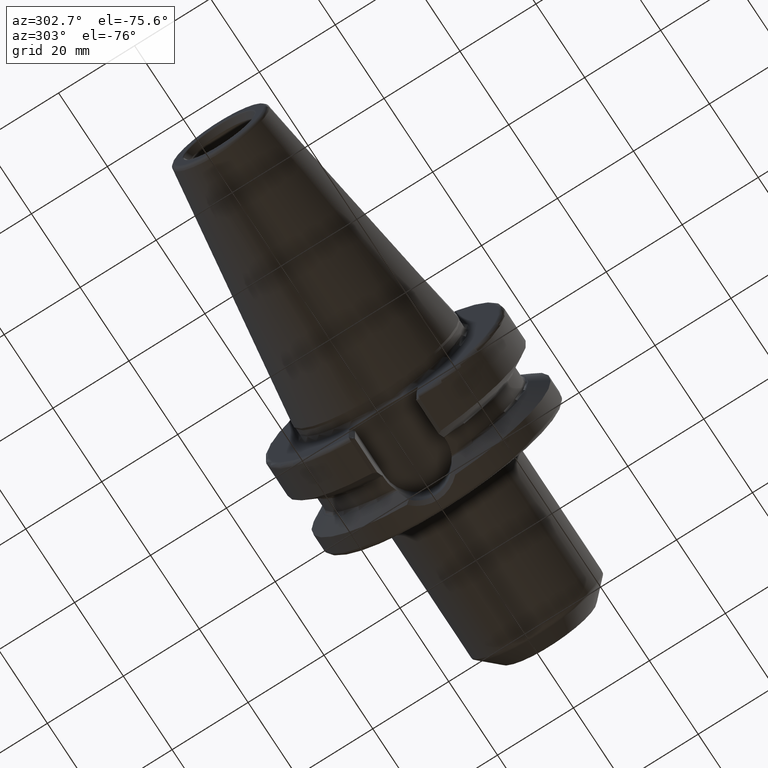
[diagram: clean part render]
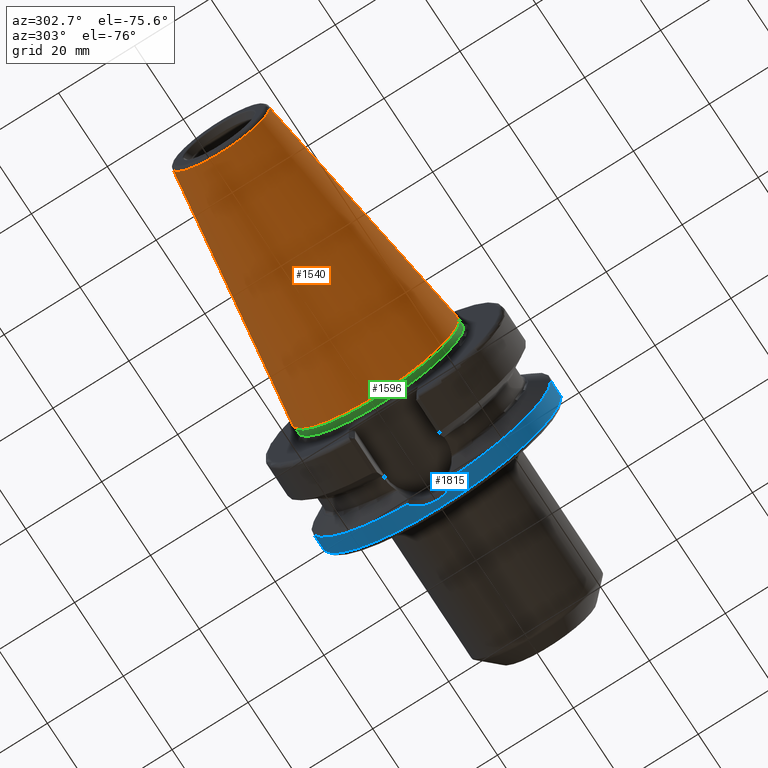
[diagram: same view with three faces highlighted in distinct colors, each labeled with its STEP entity id]
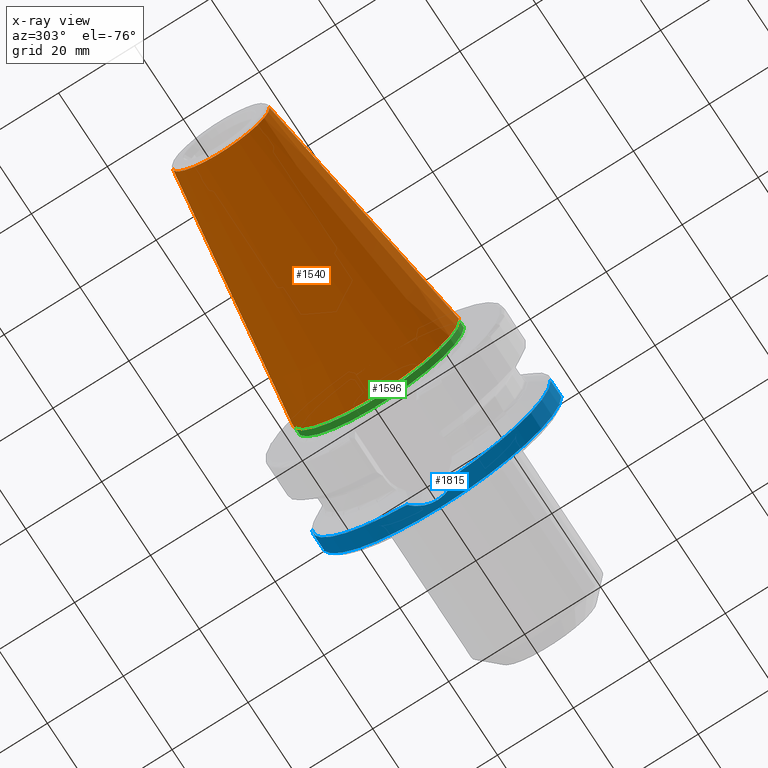
[diagram: x-ray of the same camera — body ghosted, the three highlighted faces saturated]
A machine part, auxiliary view with three faces highlighted in distinct colors.
The next image is the same camera in x-ray (body ghosted, the three faces saturated) — at least one of them is partly hidden behind the body in this view.
Their STEP definitions:

[orange] entity #1540 — the highlighted conical surface has half-angle 8.298 deg.
#32=CARTESIAN_POINT('',(-6.454431866917E1,0.E0,0.E0));
#33=DIRECTION('',(-1.E0,0.E0,0.E0));
#34=DIRECTION('',(0.E0,1.E0,0.E0));
#35=AXIS2_PLACEMENT_3D('',#32,#33,#34);
#47=DIRECTION('',(-9.895312636440E-1,-1.443186691705E-1,0.E0));
#48=VECTOR('',#47,6.394703124850E1);
#49=CARTESIAN_POINT('',(-1.266732031557E0,2.204025284980E1,0.E0));
#50=LINE('',#49,#48);
#51=DIRECTION('',(-9.895312636440E-1,1.443186691705E-1,0.E0));
#52=VECTOR('',#51,6.394703124850E1);
#53=CARTESIAN_POINT('',(-1.266732031557E0,-2.204025284980E1,0.E0));
#54=LINE('',#53,#52);
#55=CARTESIAN_POINT('',(-1.266732031557E0,0.E0,0.E0));
#56=DIRECTION('',(-1.E0,0.E0,0.E0));
#57=DIRECTION('',(0.E0,1.E0,0.E0));
#58=AXIS2_PLACEMENT_3D('',#55,#56,#57);
#1208=CARTESIAN_POINT('',(-6.454431866917E1,1.281150240261E1,0.E0));
#1210=VERTEX_POINT('',#1208);
#1212=CARTESIAN_POINT('',(-6.454431866917E1,-1.281150240261E1,0.E0));
#1214=VERTEX_POINT('',#1212);
#1427=CARTESIAN_POINT('',(-1.266732031557E0,2.204025284980E1,0.E0));
#1428=VERTEX_POINT('',#1427);
#1429=CARTESIAN_POINT('',(-1.266732031557E0,-2.204025284980E1,0.E0));
#1430=VERTEX_POINT('',#1429);
#1528=CARTESIAN_POINT('',(-3.290552535036E1,0.E0,0.E0));
#1529=DIRECTION('',(1.E0,0.E0,0.E0));
#1530=DIRECTION('',(0.E0,-1.E0,0.E0));
#1531=AXIS2_PLACEMENT_3D('',#1528,#1529,#1530);
#1532=CONICAL_SURFACE('',#1531,1.742587762621E1,8.297826828206E0);
#1533=ORIENTED_EDGE('',*,*,#1518,.T.);
#1534=ORIENTED_EDGE('',*,*,#1495,.T.);
#1535=ORIENTED_EDGE('',*,*,#1522,.F.);
#1537=ORIENTED_EDGE('',*,*,#1536,.F.);
#1538=EDGE_LOOP('',(#1533,#1534,#1535,#1537));
#1539=FACE_OUTER_BOUND('',#1538,.F.);
#1540=ADVANCED_FACE('',(#1539),#1532,.T.);
#36=CIRCLE('',#35,1.281150240261E1);
#59=CIRCLE('',#58,2.204025284980E1);
#1495=EDGE_CURVE('',#1210,#1214,#36,.T.);
#1518=EDGE_CURVE('',#1428,#1210,#50,.T.);
#1522=EDGE_CURVE('',#1430,#1214,#54,.T.);
#1536=EDGE_CURVE('',#1428,#1430,#59,.T.);

[blue] entity #1815 — the highlighted cylindrical surface (partial cylindrical patch) has radius 31.4875 mm, axis along (1, 0, 0).
#246=CARTESIAN_POINT('',(2.162727746897E1,0.E0,0.E0));
#247=DIRECTION('',(1.E0,0.E0,0.E0));
#248=DIRECTION('',(0.E0,-1.E0,0.E0));
#249=AXIS2_PLACEMENT_3D('',#246,#247,#248);
#251=DIRECTION('',(-1.E0,0.E0,0.E0));
#252=VECTOR('',#251,4.372722531031E0);
#253=CARTESIAN_POINT('',(2.6E1,-3.14875E1,0.E0));
#254=LINE('',#253,#252);
#255=CARTESIAN_POINT('',(2.6E1,0.E0,0.E0));
#256=DIRECTION('',(-1.E0,0.E0,0.E0));
#257=DIRECTION('',(0.E0,1.E0,0.E0));
#258=AXIS2_PLACEMENT_3D('',#255,#256,#257);
#260=DIRECTION('',(-1.E0,0.E0,0.E0));
#261=VECTOR('',#260,4.372722531031E0);
#262=CARTESIAN_POINT('',(2.6E1,3.14875E1,0.E0));
#263=LINE('',#262,#261);
#264=CARTESIAN_POINT('',(2.162727746897E1,0.E0,0.E0));
#265=DIRECTION('',(1.E0,0.E0,0.E0));
#266=DIRECTION('',(0.E0,2.025221356988E-1,-9.792776851088E-1));
#267=AXIS2_PLACEMENT_3D('',#264,#265,#266);
#269=CARTESIAN_POINT('',(2.162727746897E1,-6.376922817779E0,-3.083500464774E1));
#270=CARTESIAN_POINT('',(2.179639421098E1,-6.206831610819E0,-3.087018371088E1));
#271=CARTESIAN_POINT('',(2.232364867117E1,-5.632321227298E0,-3.098422972396E1));
#272=CARTESIAN_POINT('',(2.308132499159E1,-4.553413356838E0,-3.116719517710E1));
#273=CARTESIAN_POINT('',(2.375642364916E1,-3.096696697708E0,-3.134706212903E1));
#274=CARTESIAN_POINT('',(2.416388565718E1,-1.551520318298E0,-3.146240625515E1));
#275=CARTESIAN_POINT('',(2.429615986887E1,3.673173569156E-2,-3.150094402831E1));
#276=CARTESIAN_POINT('',(2.415103100304E1,1.624802494737E0,-3.145868929477E1));
#277=CARTESIAN_POINT('',(2.373074835246E1,3.167093598881E0,-3.133996423654E1));
#278=CARTESIAN_POINT('',(2.304347310477E1,4.618481554386E0,-3.115752883213E1));
#279=CARTESIAN_POINT('',(2.229119413287E1,5.670903386055E0,-3.097688944820E1));
#280=CARTESIAN_POINT('',(2.177863162319E1,6.224695230405E0,-3.086648974378E1));
#281=CARTESIAN_POINT('',(2.162727746897E1,6.376915747817E0,-3.083500610986E1));
#1264=CARTESIAN_POINT('',(2.162727746897E1,3.14875E1,0.E0));
#1266=VERTEX_POINT('',#1264);
#1268=CARTESIAN_POINT('',(2.162727746897E1,-3.14875E1,0.E0));
#1269=CARTESIAN_POINT('',(2.162727746897E1,-6.376922817779E0,
-3.083500464774E1));
#1270=VERTEX_POINT('',#1268);
#1271=VERTEX_POINT('',#1269);
#1272=CARTESIAN_POINT('',(2.6E1,3.14875E1,0.E0));
#1273=VERTEX_POINT('',#1272);
#1274=CARTESIAN_POINT('',(2.6E1,-3.14875E1,0.E0));
#1275=VERTEX_POINT('',#1274);
#1278=CARTESIAN_POINT('',(2.162727746897E1,6.376915747817E0,-3.083500610986E1));
#1279=VERTEX_POINT('',#1278);
#1796=CARTESIAN_POINT('',(-7.002E1,0.E0,0.E0));
#1797=DIRECTION('',(1.E0,0.E0,0.E0));
#1798=DIRECTION('',(0.E0,-1.E0,0.E0));
#1799=AXIS2_PLACEMENT_3D('',#1796,#1797,#1798);
#1800=CYLINDRICAL_SURFACE('',#1799,3.14875E1);
#1802=ORIENTED_EDGE('',*,*,#1801,.F.);
#1804=ORIENTED_EDGE('',*,*,#1803,.F.);
#1806=ORIENTED_EDGE('',*,*,#1805,.F.);
#1808=ORIENTED_EDGE('',*,*,#1807,.T.);
#1810=ORIENTED_EDGE('',*,*,#1809,.F.);
#1812=ORIENTED_EDGE('',*,*,#1811,.F.);
#1813=EDGE_LOOP('',(#1802,#1804,#1806,#1808,#1810,#1812));
#1814=FACE_OUTER_BOUND('',#1813,.F.);
#1815=ADVANCED_FACE('',(#1814),#1800,.T.);
#250=CIRCLE('',#249,3.14875E1);
#259=CIRCLE('',#258,3.14875E1);
#268=CIRCLE('',#267,3.14875E1);
#282=B_SPLINE_CURVE_WITH_KNOTS('',3,(#269,#270,#271,#272,#273,#274,#275,#276,
#277,#278,#279,#280,#281),.UNSPECIFIED.,.F.,.F.,(4,1,1,1,1,1,1,1,1,1,4),(0.E0,
5.022508536415E-2,1.633285299657E-1,2.764319745673E-1,3.895354191688E-1,
5.026388637704E-1,6.157423083720E-1,7.288457529735E-1,8.419491975751E-1,
9.550526421767E-1,1.E0),.UNSPECIFIED.);
#1801=EDGE_CURVE('',#1270,#1271,#250,.T.);
#1803=EDGE_CURVE('',#1275,#1270,#254,.T.);
#1805=EDGE_CURVE('',#1273,#1275,#259,.T.);
#1807=EDGE_CURVE('',#1273,#1266,#263,.T.);
#1809=EDGE_CURVE('',#1279,#1266,#268,.T.);
#1811=EDGE_CURVE('',#1271,#1279,#282,.T.);

[green] entity #1596 — the highlighted cylindrical surface (partial cylindrical patch) has radius 21.875 mm, axis along (1, 0, 0).
#68=CARTESIAN_POINT('',(-6.5E-1,0.E0,0.E0));
#69=DIRECTION('',(-1.E0,0.E0,0.E0));
#70=DIRECTION('',(0.E0,1.E0,0.E0));
#71=AXIS2_PLACEMENT_3D('',#68,#69,#70);
#83=DIRECTION('',(-1.E0,0.E0,0.E0));
#84=VECTOR('',#83,1.65E0);
#85=CARTESIAN_POINT('',(1.E0,2.1875E1,0.E0));
#86=LINE('',#85,#84);
#87=DIRECTION('',(-1.E0,0.E0,0.E0));
#88=VECTOR('',#87,1.65E0);
#89=CARTESIAN_POINT('',(1.E0,-2.1875E1,0.E0));
#90=LINE('',#89,#88);
#91=CARTESIAN_POINT('',(1.E0,0.E0,0.E0));
#92=DIRECTION('',(-1.E0,0.E0,0.E0));
#93=DIRECTION('',(0.E0,1.E0,0.E0));
#94=AXIS2_PLACEMENT_3D('',#91,#92,#93);
#1281=CARTESIAN_POINT('',(1.E0,2.1875E1,0.E0));
#1283=VERTEX_POINT('',#1281);
#1284=CARTESIAN_POINT('',(-6.5E-1,2.1875E1,0.E0));
#1285=VERTEX_POINT('',#1284);
#1287=CARTESIAN_POINT('',(1.E0,-2.1875E1,0.E0));
#1289=VERTEX_POINT('',#1287);
#1290=CARTESIAN_POINT('',(-6.5E-1,-2.1875E1,0.E0));
#1291=VERTEX_POINT('',#1290);
#1584=CARTESIAN_POINT('',(-7.002E1,0.E0,0.E0));
#1585=DIRECTION('',(1.E0,0.E0,0.E0));
#1586=DIRECTION('',(0.E0,-1.E0,0.E0));
#1587=AXIS2_PLACEMENT_3D('',#1584,#1585,#1586);
#1588=CYLINDRICAL_SURFACE('',#1587,2.1875E1);
#1589=ORIENTED_EDGE('',*,*,#1574,.T.);
#1590=ORIENTED_EDGE('',*,*,#1551,.T.);
#1591=ORIENTED_EDGE('',*,*,#1578,.F.);
#1593=ORIENTED_EDGE('',*,*,#1592,.F.);
#1594=EDGE_LOOP('',(#1589,#1590,#1591,#1593));
#1595=FACE_OUTER_BOUND('',#1594,.F.);
#1596=ADVANCED_FACE('',(#1595),#1588,.T.);
#72=CIRCLE('',#71,2.1875E1);
#95=CIRCLE('',#94,2.1875E1);
#1551=EDGE_CURVE('',#1285,#1291,#72,.T.);
#1574=EDGE_CURVE('',#1283,#1285,#86,.T.);
#1578=EDGE_CURVE('',#1289,#1291,#90,.T.);
#1592=EDGE_CURVE('',#1283,#1289,#95,.T.);